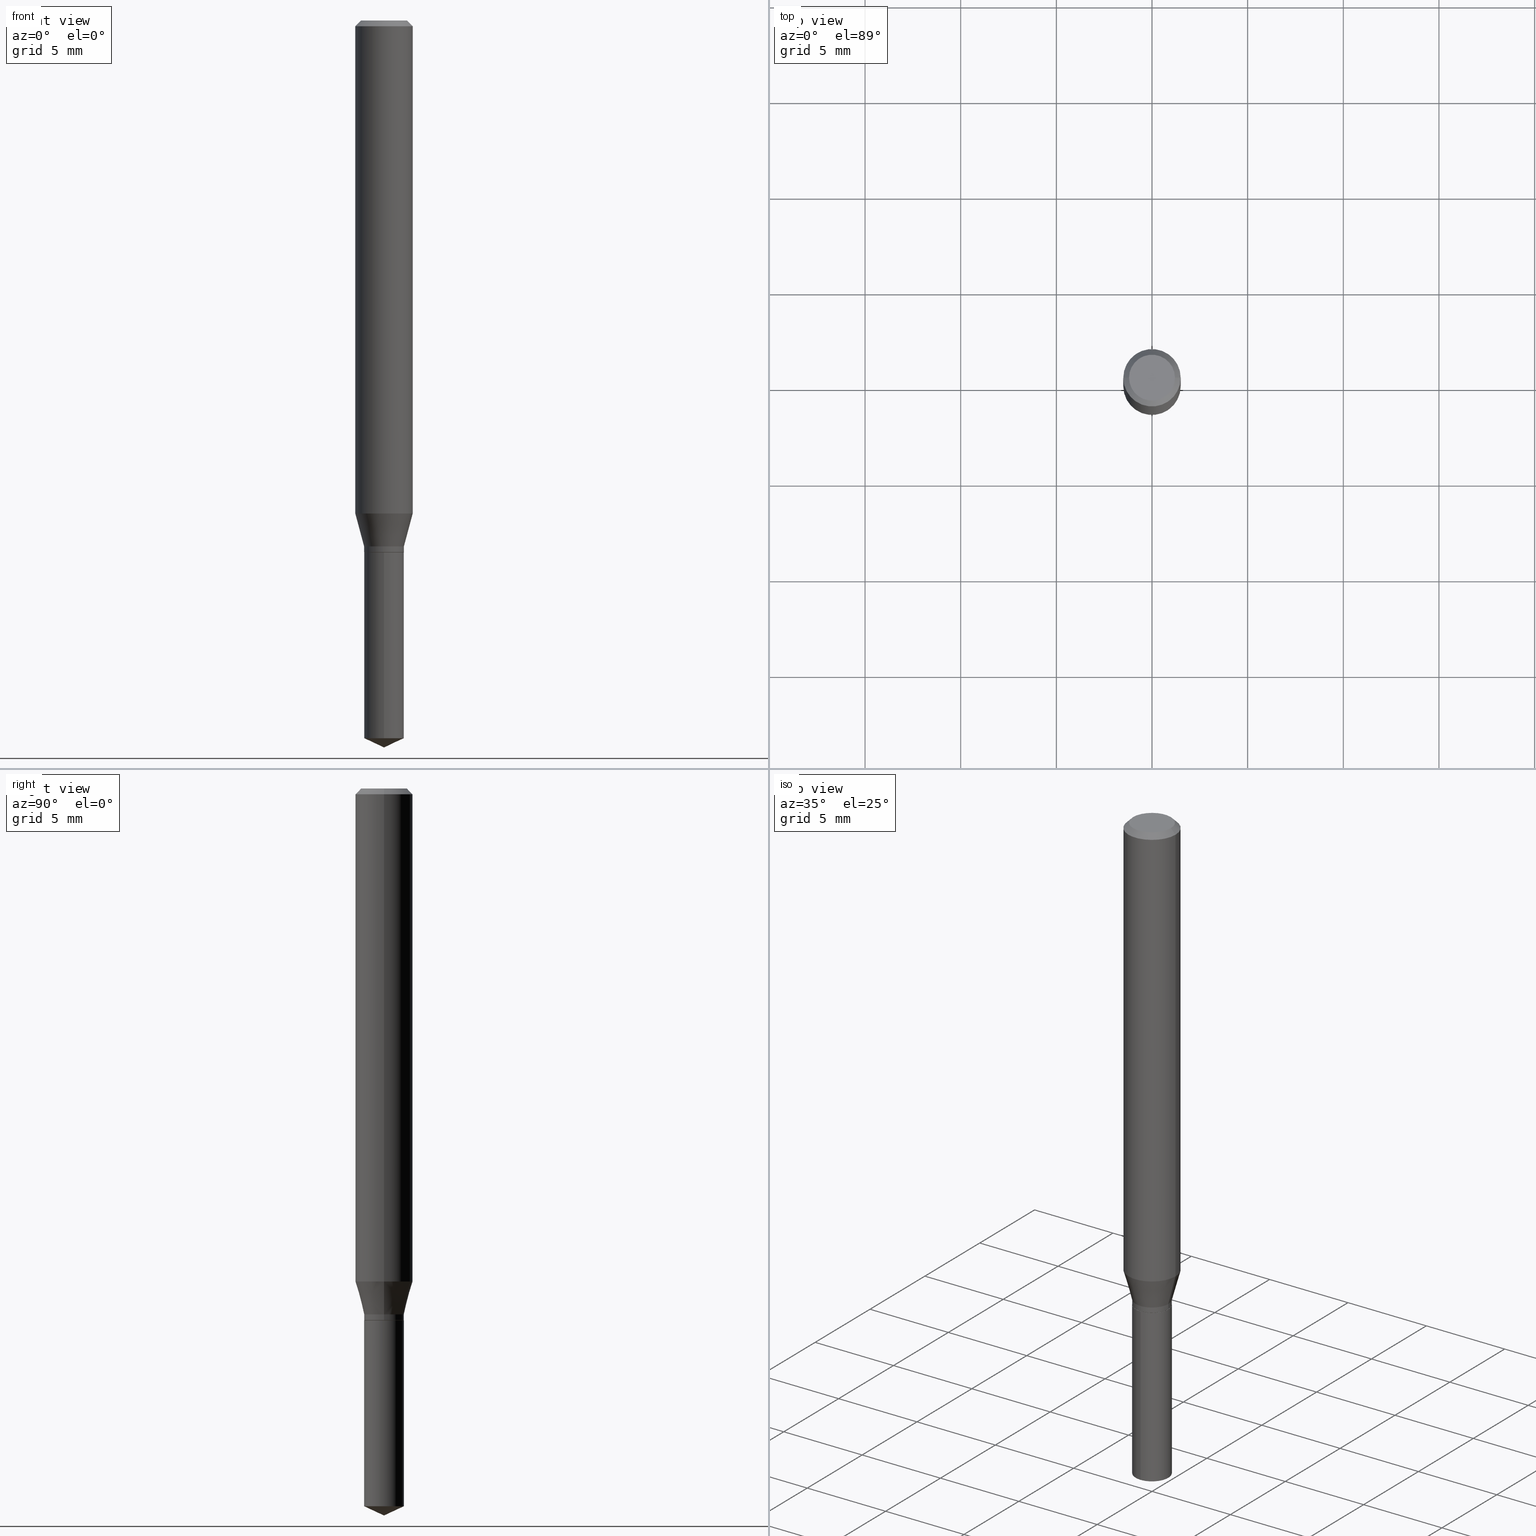
[diagram: canonical four-view strip — front | top / right | iso, engineering-drawing reading convention]
A machine part, canonical four-view strip (front | top / right | iso — engineering-drawing reading convention). The complete STEP part file that produces these views, byte-faithful:
ISO-10303-21;
HEADER;
FILE_DESCRIPTION (( 'STEP AP203' ),
    '1' );
FILE_NAME ('07954.STEP',
    '2024-04-24T07:09:16',
    ( '' ),
    ( '' ),
    'SwSTEP 2.0',
    'SolidWorks 2023',
    '' );
FILE_SCHEMA (( 'CONFIG_CONTROL_DESIGN' ));
ENDSEC;

DATA;
#1 = ORIENTED_EDGE ( 'NONE', *, *, #263, .T. ) ;
#2 = VECTOR ( 'NONE', #254, 39.37007874015748143 ) ;
#3 = APPROVAL_PERSON_ORGANIZATION ( #340, #319, #270 ) ;
#4 = ORIENTED_EDGE ( 'NONE', *, *, #314, .F. ) ;
#5 = LINE ( 'NONE', #114, #212 ) ;
#6 = ORIENTED_EDGE ( 'NONE', *, *, #158, .F. ) ;
#7 = PERSON_AND_ORGANIZATION ( #161, #139 ) ;
#8 = CARTESIAN_POINT ( 'NONE',  ( -9.261924752013118283E-28, 1.322368428517963298E-13, 37.87397874015748300 ) ) ;
#9 = EDGE_LOOP ( 'NONE', ( #226, #153, #50, #219 ) ) ;
#10 = DATE_AND_TIME ( #342, #297 ) ;
#11 = DIRECTION ( 'NONE',  ( -2.445468806185136597E-29, 3.491481338843145583E-15, 1.000000000000000000 ) ) ;
#12 = CONICAL_SURFACE ( 'NONE', #285, 0.05905000000000000526, 0.7853981633974453924 ) ;
#13 = EDGE_CURVE ( 'NONE', #73, #399, #411, .T. ) ;
#14 = EDGE_LOOP ( 'NONE', ( #371, #144 ) ) ;
#15 = DIRECTION ( 'NONE',  ( -2.445458899330790108E-29, 3.491495526022433205E-15, 1.000000000000000000 ) ) ;
#16 = APPROVAL_DATE_TIME ( #428, #421 ) ;
#17 = PERSON_AND_ORGANIZATION ( #161, #139 ) ;
#18 = CARTESIAN_POINT ( 'NONE',  ( -2.859523216512258664E-16, -0.04095000000000382362, -1.094499999999999806 ) ) ;
#19 = VERTEX_POINT ( 'NONE', #39 ) ;
#20 = ADVANCED_FACE ( 'NONE', ( #35 ), #180, .T. ) ;
#21 = DIRECTION ( 'NONE',  ( -6.328713451373378056E-15, -0.9063077870366498257, 0.4226182617406994968 ) ) ;
#22 = EDGE_CURVE ( 'NONE', #384, #305, #23, .T. ) ;
#23 = CIRCLE ( 'NONE', #361, 0.04095000000000000029 ) ;
#24 = AXIS2_PLACEMENT_3D ( 'NONE', #257, #398, #179 ) ;
#25 = DIRECTION ( 'NONE',  ( -2.445458899330790108E-29, 3.491495526022433205E-15, 1.000000000000000000 ) ) ;
#26 = SECURITY_CLASSIFICATION_LEVEL ( 'unclassified' ) ;
#27 = FACE_OUTER_BOUND ( 'NONE', #187, .T. ) ;
#28 = ORIENTED_EDGE ( 'NONE', *, *, #474, .T. ) ;
#29 = EDGE_CURVE ( 'NONE', #71, #19, #345, .T. ) ;
#30 = DIRECTION ( 'NONE',  ( -2.445468806185136597E-29, 3.491481338843145583E-15, 1.000000000000000000 ) ) ;
#31 = CIRCLE ( 'NONE', #220, 0.05905000000000000526 ) ;
#32 = DIRECTION ( 'NONE',  ( -6.982962677686266711E-15, -1.000000000000000000, 3.335589735853801395E-15 ) ) ;
#33 = UNCERTAINTY_MEASURE_WITH_UNIT (LENGTH_MEASURE( 1.000000000000000082E-05 ), #185, 'distance_accuracy_value', 'NONE');
#34 = CARTESIAN_POINT ( 'NONE',  ( 2.888098660104664642E-31, -4.123439461173780879E-17, -0.01181000000000007565 ) ) ;
#35 = FACE_OUTER_BOUND ( 'NONE', #9, .T. ) ;
#36 = CC_DESIGN_DATE_AND_TIME_ASSIGNMENT ( #10, #120, ( #208 ) ) ;
#37 = CIRCLE ( 'NONE', #469, 0.04095000000000000029 ) ;
#38 = DIRECTION ( 'NONE',  ( 1.000000000000000000, -6.982962677686264344E-15, 0.000000000000000000 ) ) ;
#39 = CARTESIAN_POINT ( 'NONE',  ( 0.04724000000000000421, -3.852183633974369838E-16, -3.380025165621689721E-19 ) ) ;
#40 = ORIENTED_EDGE ( 'NONE', *, *, #290, .F. ) ;
#41 = ADVANCED_FACE ( 'NONE', ( #324 ), #221, .F. ) ;
#42 = EDGE_CURVE ( 'NONE', #347, #488, #369, .T. ) ;
#43 = DIRECTION ( 'NONE',  ( -2.445468806185136597E-29, 3.491481338843145583E-15, 1.000000000000000000 ) ) ;
#44 = ORIENTED_EDGE ( 'NONE', *, *, #430, .F. ) ;
#45 = EDGE_CURVE ( 'NONE', #399, #73, #206, .T. ) ;
#46 = CARTESIAN_POINT ( 'NONE',  ( 2.676565608369631794E-29, -3.821426325363822773E-15, -1.094499999999999806 ) ) ;
#47 = CIRCLE ( 'NONE', #146, 0.04095000000000000029 ) ;
#48 = ORIENTED_EDGE ( 'NONE', *, *, #283, .F. ) ;
#49 = DIRECTION ( 'NONE',  ( -6.982962677686266711E-15, -1.000000000000000000, 3.335589735853801395E-15 ) ) ;
#50 = ORIENTED_EDGE ( 'NONE', *, *, #100, .T. ) ;
#51 = ORIENTED_EDGE ( 'NONE', *, *, #351, .T. ) ;
#52 = DIRECTION ( 'NONE',  ( -2.445458899330790108E-29, 3.491495526022433205E-15, 1.000000000000000000 ) ) ;
#53 = EDGE_CURVE ( 'NONE', #347, #151, #296, .T. ) ;
#54 = DIRECTION ( 'NONE',  ( -2.445468806185136597E-29, 3.491481338843145583E-15, 1.000000000000000000 ) ) ;
#55 = VECTOR ( 'NONE', #442, 39.37007874015748143 ) ;
#56 = CALENDAR_DATE ( 2024, 24, 4 ) ;
#57 = COORDINATED_UNIVERSAL_TIME_OFFSET ( 5, 0, .BEHIND. ) ;
#58 = CARTESIAN_POINT ( 'NONE',  ( -0.04095000000000000029, -3.508113594501465415E-15, -1.082200000000000051 ) ) ;
#59 = ORIENTED_EDGE ( 'NONE', *, *, #176, .T. ) ;
#60 = DIRECTION ( 'NONE',  ( -2.445468806185136597E-29, 3.491481338843145583E-15, 1.000000000000000000 ) ) ;
#61 = DIRECTION ( 'NONE',  ( -2.445468806185136597E-29, 3.491481338843145583E-15, 1.000000000000000000 ) ) ;
#62 = AXIS2_PLACEMENT_3D ( 'NONE', #370, #223, #408 ) ;
#63 = AXIS2_PLACEMENT_3D ( 'NONE', #282, #30, #478 ) ;
#64 = FACE_OUTER_BOUND ( 'NONE', #165, .T. ) ;
#65 = PRODUCT_RELATED_PRODUCT_CATEGORY ( 'detail', '', ( #108 ) ) ;
#66 = DIRECTION ( 'NONE',  ( 6.982962677686265922E-15, 1.000000000000000000, -3.491495526022433599E-15 ) ) ;
#67 = DATE_AND_TIME ( #359, #326 ) ;
#68 = DIRECTION ( 'NONE',  ( -6.982962677686268288E-15, -1.000000000000000000, 3.520397390770439276E-15 ) ) ;
#69 = CARTESIAN_POINT ( 'NONE',  ( 0.04095000000000000029, -4.064433426547304748E-15, -1.082200000000000051 ) ) ;
#70 = CARTESIAN_POINT ( 'NONE',  ( 8.265746106709734507E-48, -1.180129479067563789E-33, -3.380025165646692144E-19 ) ) ;
#71 = VERTEX_POINT ( 'NONE', #218 ) ;
#72 = AXIS2_PLACEMENT_3D ( 'NONE', #389, #207, #323 ) ;
#73 = VERTEX_POINT ( 'NONE', #148 ) ;
#74 = ADVANCED_FACE ( 'NONE', ( #450 ), #110, .F. ) ;
#75 = EDGE_LOOP ( 'NONE', ( #274, #406, #367, #300 ) ) ;
#76 = EDGE_LOOP ( 'NONE', ( #44, #154, #156, #40 ) ) ;
#77 = ORIENTED_EDGE ( 'NONE', *, *, #329, .F. ) ;
#78 = ORIENTED_EDGE ( 'NONE', *, *, #45, .T. ) ;
#79 = COORDINATED_UNIVERSAL_TIME_OFFSET ( 5, 0, .BEHIND. ) ;
#80 = CIRCLE ( 'NONE', #138, 0.04095000000000000029 ) ;
#81 = ORIENTED_EDGE ( 'NONE', *, *, #42, .T. ) ;
#82 = ORIENTED_EDGE ( 'NONE', *, *, #262, .F. ) ;
#83 = EDGE_LOOP ( 'NONE', ( #485, #111, #204, #452 ) ) ;
#84 = CARTESIAN_POINT ( 'NONE',  ( 3.658651059288795076E-29, -5.223626456482161457E-15, -1.496099999999999985 ) ) ;
#85 = CARTESIAN_POINT ( 'NONE',  ( 0.000000000000000000, 0.000000000000000000, 0.000000000000000000 ) ) ;
#86 = DATE_TIME_ROLE ( 'classification_date' ) ;
#87 = CYLINDRICAL_SURFACE ( 'NONE', #413, 0.05905000000000006771 ) ;
#88 = ADVANCED_FACE ( 'NONE', ( #365 ), #382, .T. ) ;
#89 = PERSON_AND_ORGANIZATION ( #161, #139 ) ;
#90 = VERTEX_POINT ( 'NONE', #182 ) ;
#91 = FACE_OUTER_BOUND ( 'NONE', #344, .T. ) ;
#92 = PERSON_AND_ORGANIZATION ( #161, #139 ) ;
#93 = CARTESIAN_POINT ( 'NONE',  ( 0.05905000000000000526, -4.463468013801467941E-16, -0.01181000000000007565 ) ) ;
#94 = AXIS2_PLACEMENT_3D ( 'NONE', #387, #54, #306 ) ;
#95 =( GEOMETRIC_REPRESENTATION_CONTEXT ( 3 ) GLOBAL_UNCERTAINTY_ASSIGNED_CONTEXT ( ( #33 ) ) GLOBAL_UNIT_ASSIGNED_CONTEXT ( ( #185, #188, #181 ) ) REPRESENTATION_CONTEXT ( 'NONE', 'WORKASPACE' ) );
#96 = FACE_OUTER_BOUND ( 'NONE', #268, .T. ) ;
#97 = DIRECTION ( 'NONE',  ( 2.445468806185136597E-29, -3.491481338843145583E-15, -1.000000000000000000 ) ) ;
#98 = APPLICATION_CONTEXT ( 'configuration controlled 3d designs of mechanical parts and assemblies' ) ;
#99 = CARTESIAN_POINT ( 'NONE',  ( -9.261924752013118283E-28, 1.322368428517963298E-13, 37.87397874015748300 ) ) ;
#100 = EDGE_CURVE ( 'NONE', #90, #276, #5, .T. ) ;
#101 = CONICAL_SURFACE ( 'NONE', #356, 0.04044999999999999984, 0.7853981633974141952 ) ;
#102 = SECURITY_CLASSIFICATION ( '', '', #26 ) ;
#103 = DIRECTION ( 'NONE',  ( 0.7071067811865232589, -2.468850131082003836E-15, 0.7071067811865715536 ) ) ;
#104 = CARTESIAN_POINT ( 'NONE',  ( 2.646486342053554932E-29, -3.778481104896052208E-15, -1.082200000000000051 ) ) ;
#105 = EDGE_CURVE ( 'NONE', #276, #195, #169, .T. ) ;
#106 = ORIENTED_EDGE ( 'NONE', *, *, #290, .T. ) ;
#107 = ORIENTED_EDGE ( 'NONE', *, *, #334, .F. ) ;
#108 = PRODUCT ( '07954', '07954', '', ( #166 ) ) ;
#109 = AXIS2_PLACEMENT_3D ( 'NONE', #99, #396, #68 ) ;
#110 = PLANE ( 'NONE',  #62 ) ;
#111 = ORIENTED_EDGE ( 'NONE', *, *, #430, .T. ) ;
#112 = DIRECTION ( 'NONE',  ( 0.000000000000000000, 0.000000000000000000, 1.000000000000000000 ) ) ;
#113 = DIRECTION ( 'NONE',  ( -1.000000000000000000, 6.982962677686265922E-15, -4.876176775795935793E-29 ) ) ;
#114 = CARTESIAN_POINT ( 'NONE',  ( -2.859523216512258664E-16, -0.04095000000000382362, -1.094499999999999806 ) ) ;
#115 = ORIENTED_EDGE ( 'NONE', *, *, #152, .T. ) ;
#116 = APPROVAL ( #162, 'UNSPECIFIED' ) ;
#117 = CIRCLE ( 'NONE', #24, 0.04095000000000000029 ) ;
#118 = LINE ( 'NONE', #465, #213 ) ;
#119 = ORIENTED_EDGE ( 'NONE', *, *, #437, .F. ) ;
#120 = DATE_TIME_ROLE ( 'creation_date' ) ;
#121 = DIRECTION ( 'NONE',  ( 1.000000000000000000, -6.982962677686266711E-15, 4.876176775795936353E-29 ) ) ;
#122 = ORIENTED_EDGE ( 'NONE', *, *, #152, .F. ) ;
#123 = EDGE_CURVE ( 'NONE', #305, #466, #414, .T. ) ;
#124 = DIRECTION ( 'NONE',  ( -0.2588190451025214611, 5.211531920934551042E-15, 0.9659258262890682012 ) ) ;
#125 = ADVANCED_FACE ( 'NONE', ( #234 ), #87, .T. ) ;
#126 = CARTESIAN_POINT ( 'NONE',  ( 2.909672502937971186E-16, 0.04094999999999617696, -1.094500000000000028 ) ) ;
#127 = AXIS2_PLACEMENT_3D ( 'NONE', #241, #11, #203 ) ;
#128 = PERSON_AND_ORGANIZATION ( #161, #139 ) ;
#129 = CC_DESIGN_SECURITY_CLASSIFICATION ( #102, ( #433 ) ) ;
#130 = CARTESIAN_POINT ( 'NONE',  ( 0.04095000000000000029, -2.859523216512526384E-16, 1.996794389688435923E-30 ) ) ;
#131 = LINE ( 'NONE', #438, #432 ) ;
#132 = CARTESIAN_POINT ( 'NONE',  ( 0.05905000000000000526, -4.535783407291119586E-16, -0.01181000000000007565 ) ) ;
#133 = AXIS2_PLACEMENT_3D ( 'NONE', #372, #482, #113 ) ;
#134 = CIRCLE ( 'NONE', #404, 0.04095000000000000029 ) ;
#135 = CARTESIAN_POINT ( 'NONE',  ( 0.04044999999999999984, -4.103887165676232306E-15, -1.094499999999999806 ) ) ;
#136 = FACE_OUTER_BOUND ( 'NONE', #373, .T. ) ;
#137 = LINE ( 'NONE', #216, #55 ) ;
#138 = AXIS2_PLACEMENT_3D ( 'NONE', #104, #217, #400 ) ;
#139 = ORGANIZATION ( 'UNSPECIFIED', 'UNSPECIFIED', '' ) ;
#140 = CARTESIAN_POINT ( 'NONE',  ( -0.05905000000000000526, -1.372357273247871275E-15, -0.01181000000000007565 ) ) ;
#141 = CARTESIAN_POINT ( 'NONE',  ( -0.05905000000000006771, 4.195754854663396409E-16, -2.904631170795525045E-30 ) ) ;
#142 = DIRECTION ( 'NONE',  ( -2.445458899330790108E-29, 3.491495526022433205E-15, 1.000000000000000000 ) ) ;
#143 = CARTESIAN_POINT ( 'NONE',  ( 2.676565608369631794E-29, -3.821426325363822773E-15, -1.094499999999999806 ) ) ;
#144 = ORIENTED_EDGE ( 'NONE', *, *, #381, .T. ) ;
#145 = AXIS2_PLACEMENT_3D ( 'NONE', #46, #192, #255 ) ;
#146 = AXIS2_PLACEMENT_3D ( 'NONE', #357, #25, #481 ) ;
#147 = APPLICATION_PROTOCOL_DEFINITION ( 'international standard', 'config_control_design', 1994, #333 ) ;
#148 = CARTESIAN_POINT ( 'NONE',  ( -0.04044999999999999984, -3.531362561574750752E-15, -1.094499999999999806 ) ) ;
#149 = ORIENTED_EDGE ( 'NONE', *, *, #476, .T. ) ;
#150 = MANIFOLD_SOLID_BREP ( 'Body-Move/Copy2[2]', #395 ) ;
#151 = VERTEX_POINT ( 'NONE', #375 ) ;
#152 = EDGE_CURVE ( 'NONE', #293, #90, #385, .T. ) ;
#153 = ORIENTED_EDGE ( 'NONE', *, *, #437, .T. ) ;
#154 = ORIENTED_EDGE ( 'NONE', *, *, #22, .T. ) ;
#155 = CYLINDRICAL_SURFACE ( 'NONE', #451, 0.04095000000000000029 ) ;
#156 = ORIENTED_EDGE ( 'NONE', *, *, #123, .T. ) ;
#157 = DIRECTION ( 'NONE',  ( 0.2588190451025214611, 1.565188264969621573E-15, 0.9659258262890682012 ) ) ;
#158 = EDGE_CURVE ( 'NONE', #293, #341, #168, .T. ) ;
#159 = CALENDAR_DATE ( 2024, 24, 4 ) ;
#160 = CARTESIAN_POINT ( 'NONE',  ( 3.658672935554494692E-29, -5.223595400746700193E-15, -1.496099999999999985 ) ) ;
#161 = PERSON ( 'UNSPECIFIED', 'UNSPECIFIED', 'UNSPECIFIED', ('UNSPECIFIED'), ('UNSPECIFIED'), ('UNSPECIFIED') ) ;
#162 = APPROVAL_STATUS ( 'not_yet_approved' ) ;
#163 = CC_DESIGN_PERSON_AND_ORGANIZATION_ASSIGNMENT ( #348, #456, ( #108 ) ) ;
#164 = CARTESIAN_POINT ( 'NONE',  ( 2.646486342053554932E-29, -3.778481104896052208E-15, -1.082200000000000051 ) ) ;
#165 = EDGE_LOOP ( 'NONE', ( #77, #256, #28, #303 ) ) ;
#166 = MECHANICAL_CONTEXT ( 'NONE', #333, 'mechanical' ) ;
#167 = VECTOR ( 'NONE', #21, 39.37007874015748854 ) ;
#168 = LINE ( 'NONE', #160, #424 ) ;
#169 = CIRCLE ( 'NONE', #278, 0.04095000000000000029 ) ;
#170 = VECTOR ( 'NONE', #124, 39.37007874015747433 ) ;
#171 = SHAPE_DEFINITION_REPRESENTATION ( #253, #487 ) ;
#172 = PLANE ( 'NONE',  #346 ) ;
#173 = DIRECTION ( 'NONE',  ( -2.445468806185136597E-29, 3.491481338843145583E-15, 1.000000000000000000 ) ) ;
#174 = AXIS2_PLACEMENT_3D ( 'NONE', #85, #197, #200 ) ;
#175 = ADVANCED_FACE ( 'NONE', ( #378 ), #247, .T. ) ;
#176 = EDGE_CURVE ( 'NONE', #151, #347, #441, .T. ) ;
#177 = LINE ( 'NONE', #93, #260 ) ;
#178 = FACE_OUTER_BOUND ( 'NONE', #83, .T. ) ;
#179 = DIRECTION ( 'NONE',  ( -6.982962677686266711E-15, -1.000000000000000000, 6.671179471707602790E-15 ) ) ;
#180 = CYLINDRICAL_SURFACE ( 'NONE', #259, 0.04095000000000000029 ) ;
#181 =( NAMED_UNIT ( * ) SI_UNIT ( $, .STERADIAN. ) SOLID_ANGLE_UNIT ( ) );
#182 = CARTESIAN_POINT ( 'NONE',  ( -2.859523216512164494E-16, -0.04095000000000515589, -1.477004701398552555 ) ) ;
#183 = VERTEX_POINT ( 'NONE', #58 ) ;
#184 = CC_DESIGN_PERSON_AND_ORGANIZATION_ASSIGNMENT ( #92, #388, ( #433 ) ) ;
#185 =( CONVERSION_BASED_UNIT ( 'INCH', #449 ) LENGTH_UNIT ( ) NAMED_UNIT ( #416 ) );
#186 = DIRECTION ( 'NONE',  ( -2.445468806185136877E-29, 3.491481338843145188E-15, 1.000000000000000000 ) ) ;
#187 = EDGE_LOOP ( 'NONE', ( #107, #232, #315, #51 ) ) ;
#188 =( NAMED_UNIT ( * ) PLANE_ANGLE_UNIT ( ) SI_UNIT ( $, .RADIAN. ) );
#189 = CARTESIAN_POINT ( 'NONE',  ( 2.675342873966538993E-29, -3.819680584694400481E-15, -1.093999999999999861 ) ) ;
#190 = VECTOR ( 'NONE', #312, 39.37007874015748143 ) ;
#191 = CIRCLE ( 'NONE', #72, 0.04724000000000000421 ) ;
#192 = DIRECTION ( 'NONE',  ( -2.445468806185136597E-29, 3.491481338843145583E-15, 1.000000000000000000 ) ) ;
#193 = DATE_AND_TIME ( #159, #461 ) ;
#194 = CARTESIAN_POINT ( 'NONE',  ( 0.000000000000000000, 0.000000000000000000, 0.000000000000000000 ) ) ;
#195 = VERTEX_POINT ( 'NONE', #126 ) ;
#196 = APPROVAL_DATE_TIME ( #193, #319 ) ;
#197 = DIRECTION ( 'NONE',  ( -2.445468806185136597E-29, 3.491481338843145583E-15, 1.000000000000000000 ) ) ;
#198 = ADVANCED_FACE ( 'NONE', ( #470 ), #383, .T. ) ;
#199 = ORIENTED_EDGE ( 'NONE', *, *, #294, .F. ) ;
#200 = DIRECTION ( 'NONE',  ( 1.000000000000000000, -6.982962677686266711E-15, 4.876176775795936353E-29 ) ) ;
#201 = APPROVAL_PERSON_ORGANIZATION ( #89, #421, #471 ) ;
#202 = ADVANCED_FACE ( 'NONE', ( #275 ), #307, .T. ) ;
#203 = DIRECTION ( 'NONE',  ( 1.000000000000000000, -6.982962677686264344E-15, 0.000000000000000000 ) ) ;
#204 = ORIENTED_EDGE ( 'NONE', *, *, #476, .F. ) ;
#205 = DIRECTION ( 'NONE',  ( 1.000000000000000000, -6.982962677686264344E-15, 0.000000000000000000 ) ) ;
#206 = CIRCLE ( 'NONE', #310, 0.04044999999999999984 ) ;
#207 = DIRECTION ( 'NONE',  ( -2.445468806185136597E-29, 3.491481338843145583E-15, 1.000000000000000000 ) ) ;
#208 = PRODUCT_DEFINITION ( 'UNKNOWN', '', #433, #335 ) ;
#209 = CARTESIAN_POINT ( 'NONE',  ( 2.909672502937970692E-16, 0.04094999999999483775, -1.477004701398553221 ) ) ;
#210 = CARTESIAN_POINT ( 'NONE',  ( 2.676565608369631794E-29, -3.821426325363822773E-15, -1.094499999999999806 ) ) ;
#211 = LINE ( 'NONE', #287, #240 ) ;
#212 = VECTOR ( 'NONE', #484, 39.37007874015748143 ) ;
#213 = VECTOR ( 'NONE', #157, 39.37007874015747433 ) ;
#214 = CC_DESIGN_APPROVAL ( #116, ( #433 ) ) ;
#215 = CC_DESIGN_PERSON_AND_ORGANIZATION_ASSIGNMENT ( #128, #350, ( #102 ) ) ;
#216 = CARTESIAN_POINT ( 'NONE',  ( -0.04095000000000000029, 2.909672502937610282E-16, -2.014303919459383680E-30 ) ) ;
#217 = DIRECTION ( 'NONE',  ( -2.445468806185136597E-29, 3.491481338843145583E-15, 1.000000000000000000 ) ) ;
#218 = CARTESIAN_POINT ( 'NONE',  ( -0.04724000000000000421, 3.504923541997677355E-16, -3.380025165670481712E-19 ) ) ;
#219 = ORIENTED_EDGE ( 'NONE', *, *, #409, .F. ) ;
#220 = AXIS2_PLACEMENT_3D ( 'NONE', #434, #173, #473 ) ;
#221 = PLANE ( 'NONE',  #133 ) ;
#222 = EDGE_LOOP ( 'NONE', ( #462, #489 ) ) ;
#223 = DIRECTION ( 'NONE',  ( -2.438088387897960049E-29, 3.491481338843145188E-15, 1.000000000000000000 ) ) ;
#224 = ORIENTED_EDGE ( 'NONE', *, *, #42, .F. ) ;
#225 = EDGE_LOOP ( 'NONE', ( #149, #1, #291, #82 ) ) ;
#226 = ORIENTED_EDGE ( 'NONE', *, *, #490, .F. ) ;
#227 = VECTOR ( 'NONE', #362, 39.37007874015748143 ) ;
#228 = CC_DESIGN_PERSON_AND_ORGANIZATION_ASSIGNMENT ( #453, #273, ( #433 ) ) ;
#229 = CONICAL_SURFACE ( 'NONE', #325, 0.05905000000000000526, 0.7853981633974453924 ) ;
#230 = LOCAL_TIME ( 3, 9, 16.00000000000000000, #422 ) ;
#231 = DIRECTION ( 'NONE',  ( 1.000000000000000000, -6.982962677686264344E-15, 0.000000000000000000 ) ) ;
#232 = ORIENTED_EDGE ( 'NONE', *, *, #29, .F. ) ;
#233 = EDGE_LOOP ( 'NONE', ( #235, #106, #448, #425 ) ) ;
#234 = FACE_OUTER_BOUND ( 'NONE', #327, .T. ) ;
#235 = ORIENTED_EDGE ( 'NONE', *, *, #263, .F. ) ;
#236 = DIRECTION ( 'NONE',  ( 1.000000000000000000, -6.982962677686264344E-15, 0.000000000000000000 ) ) ;
#237 = CC_DESIGN_PERSON_AND_ORGANIZATION_ASSIGNMENT ( #7, #419, ( #208 ) ) ;
#238 = APPROVAL_STATUS ( 'not_yet_approved' ) ;
#239 = AXIS2_PLACEMENT_3D ( 'NONE', #70, #295, #455 ) ;
#240 = VECTOR ( 'NONE', #322, 39.37007874015748143 ) ;
#241 = CARTESIAN_POINT ( 'NONE',  ( 2.646486342053554932E-29, -3.778481104896052208E-15, -1.082200000000000051 ) ) ;
#242 = EDGE_LOOP ( 'NONE', ( #328, #467 ) ) ;
#243 = CARTESIAN_POINT ( 'NONE',  ( 2.888098660104664642E-31, -4.123439461173780879E-17, -0.01181000000000007565 ) ) ;
#244 = ADVANCED_FACE ( 'NONE', ( #281 ), #155, .T. ) ;
#245 = CARTESIAN_POINT ( 'NONE',  ( 2.676565608369631794E-29, -3.821426325363822773E-15, -1.094499999999999806 ) ) ;
#246 = DIRECTION ( 'NONE',  ( 0.7071067811865454633, -7.319954787623248157E-15, -0.7071067811865495711 ) ) ;
#247 = CONICAL_SURFACE ( 'NONE', #366, 0.04095000000000000029, 0.2617993877991501295 ) ;
#248 = LOCAL_TIME ( 3, 9, 16.00000000000000000, #280 ) ;
#249 = DIRECTION ( 'NONE',  ( 1.000000000000000000, -6.982962677686264344E-15, 0.000000000000000000 ) ) ;
#250 = ADVANCED_FACE ( 'NONE', ( #91 ), #460, .T. ) ;
#251 = ADVANCED_FACE ( 'NONE', ( #343 ), #338, .T. ) ;
#252 = DIRECTION ( 'NONE',  ( 2.445468806185136597E-29, -3.491481338843145583E-15, -1.000000000000000000 ) ) ;
#253 = PRODUCT_DEFINITION_SHAPE ( 'NONE', 'NONE',  #208 ) ;
#254 = DIRECTION ( 'NONE',  ( -2.445458899330790108E-29, 3.491495526022433599E-15, 1.000000000000000000 ) ) ;
#255 = DIRECTION ( 'NONE',  ( 1.000000000000000000, -6.982962677686264344E-15, 0.000000000000000000 ) ) ;
#256 = ORIENTED_EDGE ( 'NONE', *, *, #13, .T. ) ;
#257 = CARTESIAN_POINT ( 'NONE',  ( 3.611965134440589814E-29, -5.156939778979417294E-15, -1.477004701398552999 ) ) ;
#258 = DIRECTION ( 'NONE',  ( -2.445458899330790108E-29, 3.491495526022433205E-15, 1.000000000000000000 ) ) ;
#259 = AXIS2_PLACEMENT_3D ( 'NONE', #292, #258, #402 ) ;
#260 = VECTOR ( 'NONE', #246, 39.37007874015748143 ) ;
#261 = CARTESIAN_POINT ( 'NONE',  ( 2.909672502937877015E-16, 0.04094999999999617696, -1.094500000000000028 ) ) ;
#262 = EDGE_CURVE ( 'NONE', #466, #151, #118, .T. ) ;
#263 = EDGE_CURVE ( 'NONE', #183, #347, #353, .T. ) ;
#264 = DIRECTION ( 'NONE',  ( 1.000000000000000000, 0.000000000000000000, 0.000000000000000000 ) ) ;
#265 = CARTESIAN_POINT ( 'NONE',  ( 2.481294631676114097E-29, -3.542631122816684991E-15, -1.014649880383003078 ) ) ;
#266 = APPROVAL_STATUS ( 'not_yet_approved' ) ;
#267 = CARTESIAN_POINT ( 'NONE',  ( 2.676565608369631794E-29, -3.821426325363822773E-15, -1.094499999999999806 ) ) ;
#268 = EDGE_LOOP ( 'NONE', ( #415, #407, #458, #199 ) ) ;
#269 = CIRCLE ( 'NONE', #475, 0.04095000000000000029 ) ;
#270 = APPROVAL_ROLE ( '' ) ;
#271 = DIRECTION ( 'NONE',  ( -2.445468806185136597E-29, 3.491481338843145583E-15, 1.000000000000000000 ) ) ;
#272 = DIRECTION ( 'NONE',  ( -6.982962677686268288E-15, -1.000000000000000000, 3.520397390770439276E-15 ) ) ;
#273 = PERSON_AND_ORGANIZATION_ROLE ( 'design_supplier' ) ;
#274 = ORIENTED_EDGE ( 'NONE', *, *, #436, .T. ) ;
#275 = FACE_OUTER_BOUND ( 'NONE', #75, .T. ) ;
#276 = VERTEX_POINT ( 'NONE', #18 ) ;
#277 = APPROVAL_ROLE ( '' ) ;
#278 = AXIS2_PLACEMENT_3D ( 'NONE', #267, #142, #355 ) ;
#279 = CARTESIAN_POINT ( 'NONE',  ( 3.658651059288794515E-29, -5.223626456482161457E-15, -1.496099999999999985 ) ) ;
#280 = COORDINATED_UNIVERSAL_TIME_OFFSET ( 5, 0, .BEHIND. ) ;
#281 = FACE_OUTER_BOUND ( 'NONE', #76, .T. ) ;
#282 = CARTESIAN_POINT ( 'NONE',  ( 0.000000000000000000, 0.000000000000000000, 0.000000000000000000 ) ) ;
#283 = EDGE_CURVE ( 'NONE', #308, #488, #443, .T. ) ;
#284 = DIRECTION ( 'NONE',  ( -2.445468806185136597E-29, 3.491481338843145583E-15, 1.000000000000000000 ) ) ;
#285 = AXIS2_PLACEMENT_3D ( 'NONE', #360, #97, #392 ) ;
#286 = LINE ( 'NONE', #435, #227 ) ;
#287 = CARTESIAN_POINT ( 'NONE',  ( -0.05905000000000000526, 3.711095515056362547E-16, -0.01181000000000007565 ) ) ;
#288 = CARTESIAN_POINT ( 'NONE',  ( -0.04095000000000000029, -3.508113594501465415E-15, -1.093999999999999861 ) ) ;
#289 = VECTOR ( 'NONE', #103, 39.37007874015748854 ) ;
#290 = EDGE_CURVE ( 'NONE', #183, #466, #269, .T. ) ;
#291 = ORIENTED_EDGE ( 'NONE', *, *, #176, .F. ) ;
#292 = CARTESIAN_POINT ( 'NONE',  ( 2.676565608369631794E-29, -3.821426325363822773E-15, -1.094499999999999806 ) ) ;
#293 = VERTEX_POINT ( 'NONE', #279 ) ;
#294 = EDGE_CURVE ( 'NONE', #71, #488, #211, .T. ) ;
#295 = DIRECTION ( 'NONE',  ( -2.445468806185136597E-29, 3.491481338843145583E-15, 1.000000000000000000 ) ) ;
#296 = CIRCLE ( 'NONE', #401, 0.05905000000000013016 ) ;
#297 = LOCAL_TIME ( 3, 9, 16.00000000000000000, #57 ) ;
#298 = CARTESIAN_POINT ( 'NONE',  ( 2.676565608369631794E-29, -3.821426325363822773E-15, -1.094499999999999806 ) ) ;
#299 = ADVANCED_FACE ( 'NONE', ( #96 ), #229, .T. ) ;
#300 = ORIENTED_EDGE ( 'NONE', *, *, #100, .F. ) ;
#301 = ORIENTED_EDGE ( 'NONE', *, *, #53, .T. ) ;
#302 = DIRECTION ( 'NONE',  ( 1.000000000000000000, -6.982962677686266711E-15, 4.876176775795936353E-29 ) ) ;
#303 = ORIENTED_EDGE ( 'NONE', *, *, #22, .F. ) ;
#304 = AXIS2_PLACEMENT_3D ( 'NONE', #243, #60, #420 ) ;
#305 = VERTEX_POINT ( 'NONE', #316 ) ;
#306 = DIRECTION ( 'NONE',  ( 1.000000000000000000, -6.982962677686265133E-15, 0.000000000000000000 ) ) ;
#307 = CYLINDRICAL_SURFACE ( 'NONE', #390, 0.04095000000000000029 ) ;
#308 = VERTEX_POINT ( 'NONE', #132 ) ;
#309 = DIRECTION ( 'NONE',  ( -2.445468806185136597E-29, 3.491481338843145583E-15, 1.000000000000000000 ) ) ;
#310 = AXIS2_PLACEMENT_3D ( 'NONE', #143, #331, #339 ) ;
#311 = MANIFOLD_SOLID_BREP ( 'Body-Move/Copy2[1]', #423 ) ;
#312 = DIRECTION ( 'NONE',  ( -2.445468806185136877E-29, 3.491481338843145188E-15, 1.000000000000000000 ) ) ;
#313 = AXIS2_PLACEMENT_3D ( 'NONE', #454, #112, #264 ) ;
#314 = EDGE_CURVE ( 'NONE', #305, #384, #37, .T. ) ;
#315 = ORIENTED_EDGE ( 'NONE', *, *, #294, .T. ) ;
#316 = CARTESIAN_POINT ( 'NONE',  ( 0.04095000000000000029, -4.105632906345653021E-15, -1.093999999999999861 ) ) ;
#317 = DATE_AND_TIME ( #380, #230 ) ;
#318 = DIRECTION ( 'NONE',  ( -1.000000000000000000, 6.982962677686265922E-15, 0.000000000000000000 ) ) ;
#319 = APPROVAL ( #266, 'UNSPECIFIED' ) ;
#320 = FACE_OUTER_BOUND ( 'NONE', #242, .T. ) ;
#321 = CONICAL_SURFACE ( 'NONE', #109, 84.42940631927469042, 1.134464013796317561 ) ;
#322 = DIRECTION ( 'NONE',  ( -0.7071067811865454633, 2.468850131082235367E-15, -0.7071067811865495711 ) ) ;
#323 = DIRECTION ( 'NONE',  ( 1.000000000000000000, -6.982962677686266711E-15, 4.876185090822587894E-29 ) ) ;
#324 = FACE_OUTER_BOUND ( 'NONE', #14, .T. ) ;
#325 = AXIS2_PLACEMENT_3D ( 'NONE', #34, #252, #318 ) ;
#326 = LOCAL_TIME ( 3, 9, 16.00000000000000000, #393 ) ;
#327 = EDGE_LOOP ( 'NONE', ( #59, #81, #48, #386 ) ) ;
#328 = ORIENTED_EDGE ( 'NONE', *, *, #105, .T. ) ;
#329 = EDGE_CURVE ( 'NONE', #73, #384, #131, .T. ) ;
#330 = ADVANCED_FACE ( 'NONE', ( #178 ), #431, .T. ) ;
#331 = DIRECTION ( 'NONE',  ( -2.445468806185136597E-29, 3.491481338843145583E-15, 1.000000000000000000 ) ) ;
#332 = EDGE_LOOP ( 'NONE', ( #78, #354, #4, #337 ) ) ;
#333 = APPLICATION_CONTEXT ( 'configuration controlled 3d designs of mechanical parts and assemblies' ) ;
#334 = EDGE_CURVE ( 'NONE', #19, #308, #177, .T. ) ;
#335 = DESIGN_CONTEXT ( 'detailed design', #98, 'design' ) ;
#336 = DIRECTION ( 'NONE',  ( 1.000000000000000000, -6.982962677686265133E-15, 0.000000000000000000 ) ) ;
#337 = ORIENTED_EDGE ( 'NONE', *, *, #474, .F. ) ;
#338 = CONICAL_SURFACE ( 'NONE', #127, 0.04095000000000000029, 0.2617993877991501295 ) ;
#339 = DIRECTION ( 'NONE',  ( 1.000000000000000000, -6.982962677686264344E-15, 0.000000000000000000 ) ) ;
#340 = PERSON_AND_ORGANIZATION ( #161, #139 ) ;
#341 = VERTEX_POINT ( 'NONE', #209 ) ;
#342 = CALENDAR_DATE ( 2024, 24, 4 ) ;
#343 = FACE_OUTER_BOUND ( 'NONE', #233, .T. ) ;
#344 = EDGE_LOOP ( 'NONE', ( #224, #301, #410, #412 ) ) ;
#345 = CIRCLE ( 'NONE', #239, 0.04724000000000000421 ) ;
#346 = AXIS2_PLACEMENT_3D ( 'NONE', #210, #477, #66 ) ;
#347 = VERTEX_POINT ( 'NONE', #391 ) ;
#348 = PERSON_AND_ORGANIZATION ( #161, #139 ) ;
#349 = DIRECTION ( 'NONE',  ( -2.445468806185136597E-29, 3.491481338843145583E-15, 1.000000000000000000 ) ) ;
#350 = PERSON_AND_ORGANIZATION_ROLE ( 'classification_officer' ) ;
#351 = EDGE_CURVE ( 'NONE', #488, #308, #31, .T. ) ;
#352 = ADVANCED_FACE ( 'NONE', ( #64 ), #101, .T. ) ;
#353 = LINE ( 'NONE', #463, #170 ) ;
#354 = ORIENTED_EDGE ( 'NONE', *, *, #329, .T. ) ;
#355 = DIRECTION ( 'NONE',  ( -6.982962677686266711E-15, -1.000000000000000000, 3.335589735853801395E-15 ) ) ;
#356 = AXIS2_PLACEMENT_3D ( 'NONE', #358, #61, #249 ) ;
#357 = CARTESIAN_POINT ( 'NONE',  ( 3.611965134440589814E-29, -5.156939778979417294E-15, -1.477004701398552999 ) ) ;
#358 = CARTESIAN_POINT ( 'NONE',  ( 2.676565608369631794E-29, -3.821426325363822773E-15, -1.094499999999999806 ) ) ;
#359 = CALENDAR_DATE ( 2024, 24, 4 ) ;
#360 = CARTESIAN_POINT ( 'NONE',  ( 2.888098660104664642E-31, -4.123439461173780879E-17, -0.01181000000000007565 ) ) ;
#361 = AXIS2_PLACEMENT_3D ( 'NONE', #189, #457, #38 ) ;
#362 = DIRECTION ( 'NONE',  ( -2.445468806185136877E-29, 3.491481338843145188E-15, 1.000000000000000000 ) ) ;
#363 = APPROVAL_DATE_TIME ( #67, #116 ) ;
#364 = CARTESIAN_POINT ( 'NONE',  ( 2.675342873966538993E-29, -3.819680584694400481E-15, -1.093999999999999861 ) ) ;
#365 = FACE_OUTER_BOUND ( 'NONE', #332, .T. ) ;
#366 = AXIS2_PLACEMENT_3D ( 'NONE', #427, #271, #236 ) ;
#367 = ORIENTED_EDGE ( 'NONE', *, *, #105, .F. ) ;
#368 = CARTESIAN_POINT ( 'NONE',  ( 0.04044999999999999984, -4.103887165676232306E-15, -1.094499999999999806 ) ) ;
#369 = LINE ( 'NONE', #141, #440 ) ;
#370 = CARTESIAN_POINT ( 'NONE',  ( 2.676565608369631794E-29, -3.821426325363822773E-15, -1.094499999999999806 ) ) ;
#371 = ORIENTED_EDGE ( 'NONE', *, *, #29, .T. ) ;
#372 = CARTESIAN_POINT ( 'NONE',  ( 4.132873053354867254E-48, -5.900647395337818946E-34, -1.690012582823346072E-19 ) ) ;
#373 = EDGE_LOOP ( 'NONE', ( #6, #115, #119 ) ) ;
#374 = AXIS2_PLACEMENT_3D ( 'NONE', #298, #43, #231 ) ;
#375 = CARTESIAN_POINT ( 'NONE',  ( 0.05905000000000013016, -3.954975068934059911E-15, -1.014649880383003078 ) ) ;
#376 = CARTESIAN_POINT ( 'NONE',  ( 0.000000000000000000, 0.000000000000000000, 0.000000000000000000 ) ) ;
#377 = ORIENTED_EDGE ( 'NONE', *, *, #158, .T. ) ;
#378 = FACE_OUTER_BOUND ( 'NONE', #225, .T. ) ;
#379 = ADVANCED_FACE ( 'NONE', ( #27 ), #12, .T. ) ;
#380 = CALENDAR_DATE ( 2024, 24, 4 ) ;
#381 = EDGE_CURVE ( 'NONE', #19, #71, #191, .T. ) ;
#382 = CONICAL_SURFACE ( 'NONE', #145, 0.04044999999999999984, 0.7853981633974141952 ) ;
#383 = CONICAL_SURFACE ( 'NONE', #480, 84.42940631927469042, 1.134464013796317561 ) ;
#384 = VERTEX_POINT ( 'NONE', #288 ) ;
#385 = LINE ( 'NONE', #84, #167 ) ;
#386 = ORIENTED_EDGE ( 'NONE', *, *, #403, .F. ) ;
#387 = CARTESIAN_POINT ( 'NONE',  ( 2.481294631676114097E-29, -3.542631122816684991E-15, -1.014649880383003078 ) ) ;
#388 = PERSON_AND_ORGANIZATION_ROLE ( 'creator' ) ;
#389 = CARTESIAN_POINT ( 'NONE',  ( 8.265746106709734507E-48, -1.180129479067563789E-33, -3.380025165646692144E-19 ) ) ;
#390 = AXIS2_PLACEMENT_3D ( 'NONE', #468, #52, #49 ) ;
#391 = CARTESIAN_POINT ( 'NONE',  ( -0.05905000000000013016, -3.123055637350344709E-15, -1.014649880383003078 ) ) ;
#392 = DIRECTION ( 'NONE',  ( -1.000000000000000000, 6.982962677686265922E-15, 0.000000000000000000 ) ) ;
#393 = COORDINATED_UNIVERSAL_TIME_OFFSET ( 5, 0, .BEHIND. ) ;
#394 = DIRECTION ( 'NONE',  ( -0.7071067811865232589, 7.493145998870265808E-15, 0.7071067811865715536 ) ) ;
#395 = CLOSED_SHELL ( 'NONE', ( #88, #299, #125, #175, #330, #244, #251, #250, #379, #41, #74, #352 ) ) ;
#396 = DIRECTION ( 'NONE',  ( -2.445458899330790108E-29, 3.491495526022433205E-15, 1.000000000000000000 ) ) ;
#397 = ADVANCED_FACE ( 'NONE', ( #320 ), #172, .F. ) ;
#398 = DIRECTION ( 'NONE',  ( -2.445458899330790108E-29, 3.491495526022433205E-15, 1.000000000000000000 ) ) ;
#399 = VERTEX_POINT ( 'NONE', #135 ) ;
#400 = DIRECTION ( 'NONE',  ( 1.000000000000000000, -6.982962677686264344E-15, 0.000000000000000000 ) ) ;
#401 = AXIS2_PLACEMENT_3D ( 'NONE', #265, #446, #336 ) ;
#402 = DIRECTION ( 'NONE',  ( -6.982962677686266711E-15, -1.000000000000000000, 3.335589735853801395E-15 ) ) ;
#403 = EDGE_CURVE ( 'NONE', #151, #308, #286, .T. ) ;
#404 = AXIS2_PLACEMENT_3D ( 'NONE', #245, #479, #32 ) ;
#405 = APPROVAL_PERSON_ORGANIZATION ( #17, #116, #277 ) ;
#406 = ORIENTED_EDGE ( 'NONE', *, *, #490, .T. ) ;
#407 = ORIENTED_EDGE ( 'NONE', *, *, #334, .T. ) ;
#408 = DIRECTION ( 'NONE',  ( 1.000000000000000000, -6.982962677686265922E-15, 4.876176775795935793E-29 ) ) ;
#409 = EDGE_CURVE ( 'NONE', #195, #276, #134, .T. ) ;
#410 = ORIENTED_EDGE ( 'NONE', *, *, #403, .T. ) ;
#411 = CIRCLE ( 'NONE', #374, 0.04044999999999999984 ) ;
#412 = ORIENTED_EDGE ( 'NONE', *, *, #351, .F. ) ;
#413 = AXIS2_PLACEMENT_3D ( 'NONE', #194, #349, #121 ) ;
#414 = LINE ( 'NONE', #130, #190 ) ;
#415 = ORIENTED_EDGE ( 'NONE', *, *, #381, .F. ) ;
#416 = DIMENSIONAL_EXPONENTS ( 1.000000000000000000, 0.000000000000000000, 0.000000000000000000, 0.000000000000000000, 0.000000000000000000, 0.000000000000000000, 0.000000000000000000 ) ;
#417 = ADVANCED_FACE ( 'NONE', ( #136 ), #321, .T. ) ;
#418 = DIRECTION ( 'NONE',  ( -2.445468806185136597E-29, 3.491481338843145583E-15, 1.000000000000000000 ) ) ;
#419 = PERSON_AND_ORGANIZATION_ROLE ( 'creator' ) ;
#420 = DIRECTION ( 'NONE',  ( 1.000000000000000000, -6.982962677686268288E-15, 0.000000000000000000 ) ) ;
#421 = APPROVAL ( #238, 'UNSPECIFIED' ) ;
#422 = COORDINATED_UNIVERSAL_TIME_OFFSET ( 5, 0, .BEHIND. ) ;
#423 = CLOSED_SHELL ( 'NONE', ( #202, #198, #417, #20, #397 ) ) ;
#424 = VECTOR ( 'NONE', #429, 39.37007874015748854 ) ;
#425 = ORIENTED_EDGE ( 'NONE', *, *, #53, .F. ) ;
#426 = CC_DESIGN_APPROVAL ( #319, ( #208 ) ) ;
#427 = CARTESIAN_POINT ( 'NONE',  ( 2.646486342053554932E-29, -3.778481104896052208E-15, -1.082200000000000051 ) ) ;
#428 = DATE_AND_TIME ( #56, #248 ) ;
#429 = DIRECTION ( 'NONE',  ( 6.439704144417035086E-15, 0.9063077870366528233, 0.4226182617406932240 ) ) ;
#430 = EDGE_CURVE ( 'NONE', #384, #183, #137, .T. ) ;
#431 = CYLINDRICAL_SURFACE ( 'NONE', #63, 0.04095000000000000029 ) ;
#432 = VECTOR ( 'NONE', #394, 39.37007874015748854 ) ;
#433 = PRODUCT_DEFINITION_FORMATION_WITH_SPECIFIED_SOURCE ( 'ANY', '', #108, .NOT_KNOWN. ) ;
#434 = CARTESIAN_POINT ( 'NONE',  ( 2.888098660104664642E-31, -4.123439461173780879E-17, -0.01181000000000007565 ) ) ;
#435 = CARTESIAN_POINT ( 'NONE',  ( 0.05905000000000006771, -4.123439461173745257E-16, 2.879382386107503723E-30 ) ) ;
#436 = EDGE_CURVE ( 'NONE', #90, #341, #47, .T. ) ;
#437 = EDGE_CURVE ( 'NONE', #341, #90, #117, .T. ) ;
#438 = CARTESIAN_POINT ( 'NONE',  ( -0.04044999999999999984, -3.534011788748862348E-15, -1.094499999999999806 ) ) ;
#439 = CC_DESIGN_DATE_AND_TIME_ASSIGNMENT ( #317, #86, ( #102 ) ) ;
#440 = VECTOR ( 'NONE', #186, 39.37007874015748143 ) ;
#441 = CIRCLE ( 'NONE', #94, 0.05905000000000013016 ) ;
#442 = DIRECTION ( 'NONE',  ( -2.445468806185136877E-29, 3.491481338843145188E-15, 1.000000000000000000 ) ) ;
#443 = CIRCLE ( 'NONE', #304, 0.05905000000000000526 ) ;
#444 = CC_DESIGN_APPROVAL ( #421, ( #102 ) ) ;
#445 = LINE ( 'NONE', #261, #2 ) ;
#446 = DIRECTION ( 'NONE',  ( -2.445468806185136597E-29, 3.491481338843145583E-15, 1.000000000000000000 ) ) ;
#447 = EDGE_LOOP ( 'NONE', ( #122, #377, #459 ) ) ;
#448 = ORIENTED_EDGE ( 'NONE', *, *, #262, .T. ) ;
#449 = LENGTH_MEASURE_WITH_UNIT ( LENGTH_MEASURE( 0.02539999999999999897 ), #483 );
#450 = FACE_OUTER_BOUND ( 'NONE', #222, .T. ) ;
#451 = AXIS2_PLACEMENT_3D ( 'NONE', #376, #418, #302 ) ;
#452 = ORIENTED_EDGE ( 'NONE', *, *, #123, .F. ) ;
#453 = PERSON_AND_ORGANIZATION ( #161, #139 ) ;
#454 = CARTESIAN_POINT ( 'NONE',  ( 0.000000000000000000, 0.000000000000000000, 0.000000000000000000 ) ) ;
#455 = DIRECTION ( 'NONE',  ( 1.000000000000000000, -6.982962677686266711E-15, 4.876185090822587894E-29 ) ) ;
#456 = PERSON_AND_ORGANIZATION_ROLE ( 'design_owner' ) ;
#457 = DIRECTION ( 'NONE',  ( -2.445468806185136597E-29, 3.491481338843145583E-15, 1.000000000000000000 ) ) ;
#458 = ORIENTED_EDGE ( 'NONE', *, *, #283, .T. ) ;
#459 = ORIENTED_EDGE ( 'NONE', *, *, #436, .F. ) ;
#460 = CYLINDRICAL_SURFACE ( 'NONE', #174, 0.05905000000000006771 ) ;
#461 = LOCAL_TIME ( 3, 9, 16.00000000000000000, #79 ) ;
#462 = ORIENTED_EDGE ( 'NONE', *, *, #45, .F. ) ;
#463 = CARTESIAN_POINT ( 'NONE',  ( -0.04095000000000000029, -3.487513854602290884E-15, -1.082200000000000051 ) ) ;
#464 = APPLICATION_PROTOCOL_DEFINITION ( 'international standard', 'config_control_design', 1994, #98 ) ;
#465 = CARTESIAN_POINT ( 'NONE',  ( 0.04095000000000000029, -4.064433426547304748E-15, -1.082200000000000051 ) ) ;
#466 = VERTEX_POINT ( 'NONE', #69 ) ;
#467 = ORIENTED_EDGE ( 'NONE', *, *, #409, .T. ) ;
#468 = CARTESIAN_POINT ( 'NONE',  ( 2.676565608369631794E-29, -3.821426325363822773E-15, -1.094499999999999806 ) ) ;
#469 = AXIS2_PLACEMENT_3D ( 'NONE', #364, #284, #472 ) ;
#470 = FACE_OUTER_BOUND ( 'NONE', #447, .T. ) ;
#471 = APPROVAL_ROLE ( '' ) ;
#472 = DIRECTION ( 'NONE',  ( 1.000000000000000000, -6.982962677686264344E-15, 0.000000000000000000 ) ) ;
#473 = DIRECTION ( 'NONE',  ( 1.000000000000000000, -6.982962677686268288E-15, 0.000000000000000000 ) ) ;
#474 = EDGE_CURVE ( 'NONE', #399, #305, #486, .T. ) ;
#475 = AXIS2_PLACEMENT_3D ( 'NONE', #164, #309, #205 ) ;
#476 = EDGE_CURVE ( 'NONE', #466, #183, #80, .T. ) ;
#477 = DIRECTION ( 'NONE',  ( 2.445458899330789267E-29, -3.491495526022433599E-15, -1.000000000000000000 ) ) ;
#478 = DIRECTION ( 'NONE',  ( 1.000000000000000000, -6.982962677686266711E-15, 4.876176775795936353E-29 ) ) ;
#479 = DIRECTION ( 'NONE',  ( -2.445458899330790108E-29, 3.491495526022433205E-15, 1.000000000000000000 ) ) ;
#480 = AXIS2_PLACEMENT_3D ( 'NONE', #8, #15, #272 ) ;
#481 = DIRECTION ( 'NONE',  ( -6.982962677686266711E-15, -1.000000000000000000, 6.671179471707602790E-15 ) ) ;
#482 = DIRECTION ( 'NONE',  ( 2.438088387897960049E-29, -3.491481338843145188E-15, -1.000000000000000000 ) ) ;
#483 =( LENGTH_UNIT ( ) NAMED_UNIT ( * ) SI_UNIT ( $, .METRE. ) );
#484 = DIRECTION ( 'NONE',  ( -2.445458899330790108E-29, 3.491495526022433599E-15, 1.000000000000000000 ) ) ;
#485 = ORIENTED_EDGE ( 'NONE', *, *, #314, .T. ) ;
#486 = LINE ( 'NONE', #368, #289 ) ;
#487 = ADVANCED_BREP_SHAPE_REPRESENTATION ( '07954', ( #311, #150, #313 ), #95 ) ;
#488 = VERTEX_POINT ( 'NONE', #140 ) ;
#489 = ORIENTED_EDGE ( 'NONE', *, *, #13, .F. ) ;
#490 = EDGE_CURVE ( 'NONE', #341, #195, #445, .T. ) ;
ENDSEC;
END-ISO-10303-21;
